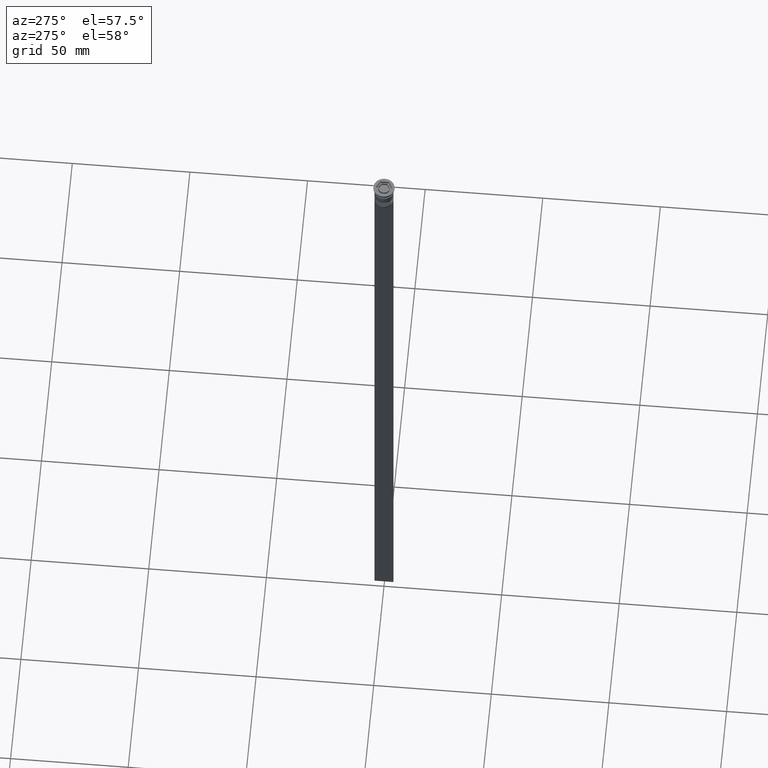
[diagram: clean part render]
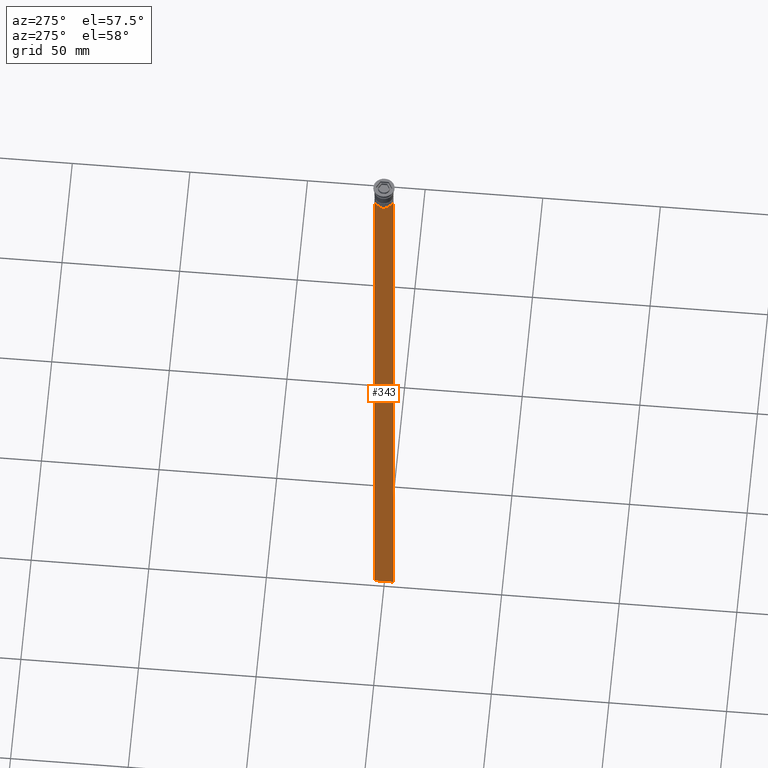
[diagram: same view with one face highlighted and labeled with its STEP entity id]
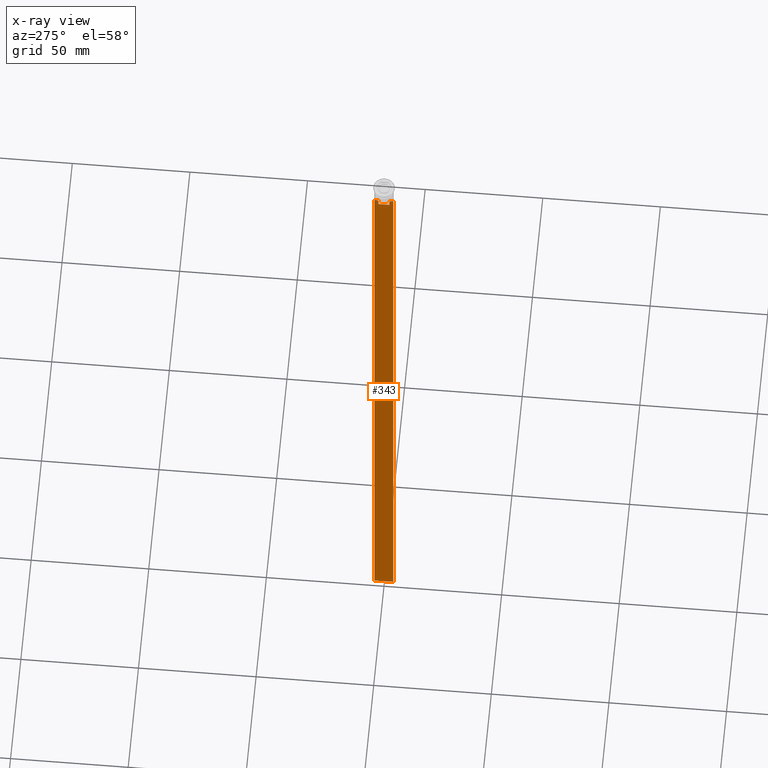
[diagram: x-ray of the same camera — body ghosted, the highlighted face saturated]
A machine part, auxiliary view. The second image highlights one B-rep face of the part: STEP entity #343.
The next image is the same camera in x-ray: the body ghosted, the highlighted face saturated — about 0% of this face is hidden behind the body in this view.
In plain terms, the highlighted planar face has unit normal (-1, 0, 0).
Its self-contained STEP definition (entity closure, byte-faithful):
#16 = B_SPLINE_CURVE_WITH_KNOTS ( 'NONE', 3,
 ( #1409, #1352, #432, #820 ),
 .UNSPECIFIED., .F., .F.,
 ( 4, 4 ),
 ( 0.004956812174141195064, 0.005670477137898153989 ),
 .UNSPECIFIED. ) ;
#33 = VECTOR ( 'NONE', #174, 1000.000000000000000 ) ;
#43 = LINE ( 'NONE', #819, #348 ) ;
#72 = VERTEX_POINT ( 'NONE', #2081 ) ;
#100 = CARTESIAN_POINT ( 'NONE',  ( -0.5000000000000000000, -4.000000000000000000, -1.437742251701450202 ) ) ;
#128 = ORIENTED_EDGE ( 'NONE', *, *, #447, .F. ) ;
#174 = DIRECTION ( 'NONE',  ( 0.000000000000000000, -1.000000000000000000, 0.000000000000000000 ) ) ;
#181 = VERTEX_POINT ( 'NONE', #1176 ) ;
#207 = CARTESIAN_POINT ( 'NONE',  ( -0.5000000000000000000, -2.347338918861097135, -10.00000000000000000 ) ) ;
#244 = EDGE_CURVE ( 'NONE', #2216, #1886, #672, .T. ) ;
#276 = VECTOR ( 'NONE', #2430, 1000.000000000000000 ) ;
#277 = VERTEX_POINT ( 'NONE', #1423 ) ;
#293 = FACE_OUTER_BOUND ( 'NONE', #1428, .T. ) ;
#294 = DIRECTION ( 'NONE',  ( 0.000000000000000000, 0.000000000000000000, -1.000000000000000000 ) ) ;
#329 = LINE ( 'NONE', #493, #954 ) ;
#343 = ADVANCED_FACE ( 'NONE', ( #293 ), #480, .T. ) ;
#348 = VECTOR ( 'NONE', #1637, 1000.000000000000000 ) ;
#403 = DIRECTION ( 'NONE',  ( 0.000000000000000000, -1.000000000000000000, 0.000000000000000000 ) ) ;
#416 = ORIENTED_EDGE ( 'NONE', *, *, #1892, .F. ) ;
#432 = CARTESIAN_POINT ( 'NONE',  ( -0.5000000000000000000, 2.517407211010871393, -9.833663366238582171 ) ) ;
#444 = CARTESIAN_POINT ( 'NONE',  ( -0.5000000000000000000, -2.347338918861097135, -10.00000000000000000 ) ) ;
#447 = EDGE_CURVE ( 'NONE', #2089, #2483, #16, .T. ) ;
#451 = CARTESIAN_POINT ( 'NONE',  ( -0.5000000000000000000, 4.000000000000000000, -1.437742251701450202 ) ) ;
#468 = ORIENTED_EDGE ( 'NONE', *, *, #1682, .F. ) ;
#476 = EDGE_CURVE ( 'NONE', #72, #1772, #1960, .T. ) ;
#480 = PLANE ( 'NONE',  #2471 ) ;
#493 = CARTESIAN_POINT ( 'NONE',  ( -0.5000000000000000000, -4.000000000000000000, -9.500000000000000000 ) ) ;
#497 = EDGE_CURVE ( 'NONE', #1600, #72, #2478, .T. ) ;
#519 = DIRECTION ( 'NONE',  ( 0.000000000000000000, -1.000000000000000000, 0.000000000000000000 ) ) ;
#554 = ORIENTED_EDGE ( 'NONE', *, *, #801, .F. ) ;
#558 = CARTESIAN_POINT ( 'NONE',  ( -0.5000000000000000000, -4.000000000000000000, -9.500000000000000000 ) ) ;
#672 = LINE ( 'NONE', #451, #1817 ) ;
#747 = ORIENTED_EDGE ( 'NONE', *, *, #2524, .F. ) ;
#757 = VECTOR ( 'NONE', #1751, 1000.000000000000000 ) ;
#766 = CARTESIAN_POINT ( 'NONE',  ( -0.5000000000000000000, -4.000000000000000000, -9.500000000000000000 ) ) ;
#801 = EDGE_CURVE ( 'NONE', #2003, #181, #877, .T. ) ;
#819 = CARTESIAN_POINT ( 'NONE',  ( -0.5000000000000000000, 2.347338918861097135, 0.000000000000000000 ) ) ;
#820 = CARTESIAN_POINT ( 'NONE',  ( -0.5000000000000000000, 2.347338918861097135, -10.00000000000000000 ) ) ;
#877 = LINE ( 'NONE', #1080, #2401 ) ;
#900 = CARTESIAN_POINT ( 'NONE',  ( -0.5000000000000000000, 2.856571371417138572, -9.500000000000000000 ) ) ;
#954 = VECTOR ( 'NONE', #519, 1000.000000000000000 ) ;
#968 = LINE ( 'NONE', #558, #757 ) ;
#994 = CARTESIAN_POINT ( 'NONE',  ( -0.5000000000000000000, -2.687095498514037839, -9.666937905752043037 ) ) ;
#1011 = CARTESIAN_POINT ( 'NONE',  ( -0.5000000000000000000, -2.517408374291112416, -9.833662228483172285 ) ) ;
#1019 = DIRECTION ( 'NONE',  ( 0.000000000000000000, 0.000000000000000000, 1.000000000000000000 ) ) ;
#1056 = ORIENTED_EDGE ( 'NONE', *, *, #1301, .F. ) ;
#1075 = DIRECTION ( 'NONE',  ( 0.000000000000000000, -1.000000000000000000, 0.000000000000000000 ) ) ;
#1080 = CARTESIAN_POINT ( 'NONE',  ( -0.5000000000000000000, -4.000000000000000000, -1.437742251701450202 ) ) ;
#1094 = CARTESIAN_POINT ( 'NONE',  ( -0.5000000000000000000, -4.000000000000000000, -309.5000000000000000 ) ) ;
#1107 = LINE ( 'NONE', #1480, #276 ) ;
#1176 = CARTESIAN_POINT ( 'NONE',  ( -0.5000000000000000000, -4.000000000000000000, -309.5000000000000000 ) ) ;
#1198 = CARTESIAN_POINT ( 'NONE',  ( -0.5000000000000000000, 2.347338918861097135, -10.00000000000000000 ) ) ;
#1244 = VERTEX_POINT ( 'NONE', #1912 ) ;
#1274 = DIRECTION ( 'NONE',  ( -1.000000000000000000, 0.000000000000000000, 0.000000000000000000 ) ) ;
#1287 = EDGE_CURVE ( 'NONE', #2297, #1244, #1485, .T. ) ;
#1301 = EDGE_CURVE ( 'NONE', #181, #1886, #2059, .T. ) ;
#1352 = CARTESIAN_POINT ( 'NONE',  ( -0.5000000000000000000, 2.687094542495897631, -9.666938847453439010 ) ) ;
#1409 = CARTESIAN_POINT ( 'NONE',  ( -0.5000000000000000000, 2.856571371417138572, -9.500000000000000000 ) ) ;
#1414 = VECTOR ( 'NONE', #1875, 1000.000000000000000 ) ;
#1423 = CARTESIAN_POINT ( 'NONE',  ( -0.5000000000000000000, 3.867815921162741422, -9.500000000000000000 ) ) ;
#1428 = EDGE_LOOP ( 'NONE', ( #128, #416, #468, #1963, #1056, #554, #747, #2085, #2293, #2116, #1921, #2083 ) ) ;
#1434 = DIRECTION ( 'NONE',  ( 0.000000000000000000, 0.000000000000000000, -1.000000000000000000 ) ) ;
#1480 = CARTESIAN_POINT ( 'NONE',  ( -0.5000000000000000000, -2.347338918861097135, 0.000000000000000000 ) ) ;
#1485 = LINE ( 'NONE', #2095, #1572 ) ;
#1572 = VECTOR ( 'NONE', #1075, 1000.000000000000000 ) ;
#1600 = VERTEX_POINT ( 'NONE', #444 ) ;
#1624 = CARTESIAN_POINT ( 'NONE',  ( -0.5000000000000000000, -4.000000000000000000, -9.500000000000000000 ) ) ;
#1637 = DIRECTION ( 'NONE',  ( 0.000000000000000000, 0.000000000000000000, -1.000000000000000000 ) ) ;
#1682 = EDGE_CURVE ( 'NONE', #2216, #277, #329, .T. ) ;
#1735 = CARTESIAN_POINT ( 'NONE',  ( -0.5000000000000000000, 4.000000000000000000, -309.5000000000000000 ) ) ;
#1751 = DIRECTION ( 'NONE',  ( 0.000000000000000000, -1.000000000000000000, 0.000000000000000000 ) ) ;
#1772 = VERTEX_POINT ( 'NONE', #2082 ) ;
#1794 = CARTESIAN_POINT ( 'NONE',  ( -0.5000000000000000000, -2.856571371417138572, -9.500000000000000000 ) ) ;
#1817 = VECTOR ( 'NONE', #1434, 1000.000000000000000 ) ;
#1875 = DIRECTION ( 'NONE',  ( 0.000000000000000000, 1.000000000000000000, 0.000000000000000000 ) ) ;
#1886 = VERTEX_POINT ( 'NONE', #1735 ) ;
#1892 = EDGE_CURVE ( 'NONE', #277, #2089, #968, .T. ) ;
#1912 = CARTESIAN_POINT ( 'NONE',  ( -0.5000000000000000000, -2.347338918861097135, -12.50000000000000000 ) ) ;
#1921 = ORIENTED_EDGE ( 'NONE', *, *, #1287, .F. ) ;
#1960 = LINE ( 'NONE', #766, #1988 ) ;
#1963 = ORIENTED_EDGE ( 'NONE', *, *, #244, .T. ) ;
#1967 = CARTESIAN_POINT ( 'NONE',  ( -0.5000000000000000000, -4.000000000000000000, -9.500000000000000000 ) ) ;
#1988 = VECTOR ( 'NONE', #403, 1000.000000000000000 ) ;
#2003 = VERTEX_POINT ( 'NONE', #1624 ) ;
#2041 = EDGE_CURVE ( 'NONE', #2483, #2297, #43, .T. ) ;
#2059 = LINE ( 'NONE', #1094, #1414 ) ;
#2081 = CARTESIAN_POINT ( 'NONE',  ( -0.5000000000000000000, -2.856571371417138572, -9.500000000000000000 ) ) ;
#2082 = CARTESIAN_POINT ( 'NONE',  ( -0.5000000000000000000, -3.867815921162741422, -9.500000000000000000 ) ) ;
#2083 = ORIENTED_EDGE ( 'NONE', *, *, #2041, .F. ) ;
#2085 = ORIENTED_EDGE ( 'NONE', *, *, #476, .F. ) ;
#2089 = VERTEX_POINT ( 'NONE', #900 ) ;
#2095 = CARTESIAN_POINT ( 'NONE',  ( -0.5000000000000000000, 2.399999999999996803, -12.50000000000000000 ) ) ;
#2116 = ORIENTED_EDGE ( 'NONE', *, *, #2178, .F. ) ;
#2178 = EDGE_CURVE ( 'NONE', #1244, #1600, #1107, .T. ) ;
#2216 = VERTEX_POINT ( 'NONE', #2249 ) ;
#2249 = CARTESIAN_POINT ( 'NONE',  ( -0.5000000000000000000, 4.000000000000000000, -9.500000000000000000 ) ) ;
#2293 = ORIENTED_EDGE ( 'NONE', *, *, #497, .F. ) ;
#2297 = VERTEX_POINT ( 'NONE', #2515 ) ;
#2368 = LINE ( 'NONE', #1967, #33 ) ;
#2401 = VECTOR ( 'NONE', #294, 1000.000000000000000 ) ;
#2430 = DIRECTION ( 'NONE',  ( -0.000000000000000000, -0.000000000000000000, 1.000000000000000000 ) ) ;
#2471 = AXIS2_PLACEMENT_3D ( 'NONE', #100, #1274, #1019 ) ;
#2478 = B_SPLINE_CURVE_WITH_KNOTS ( 'NONE', 3,
 ( #207, #1011, #994, #1794 ),
 .UNSPECIFIED., .F., .F.,
 ( 4, 4 ),
 ( 0.01178336557230038641, 0.01249758354768160454 ),
 .UNSPECIFIED. ) ;
#2483 = VERTEX_POINT ( 'NONE', #1198 ) ;
#2515 = CARTESIAN_POINT ( 'NONE',  ( -0.5000000000000000000, 2.347338918861097135, -12.50000000000000000 ) ) ;
#2524 = EDGE_CURVE ( 'NONE', #1772, #2003, #2368, .T. ) ;